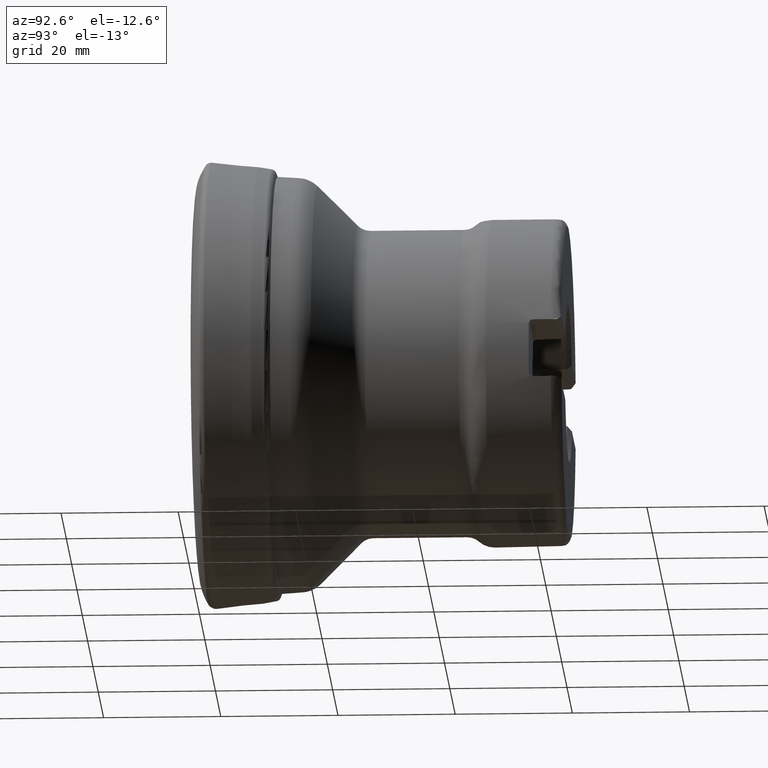
[diagram: clean part render]
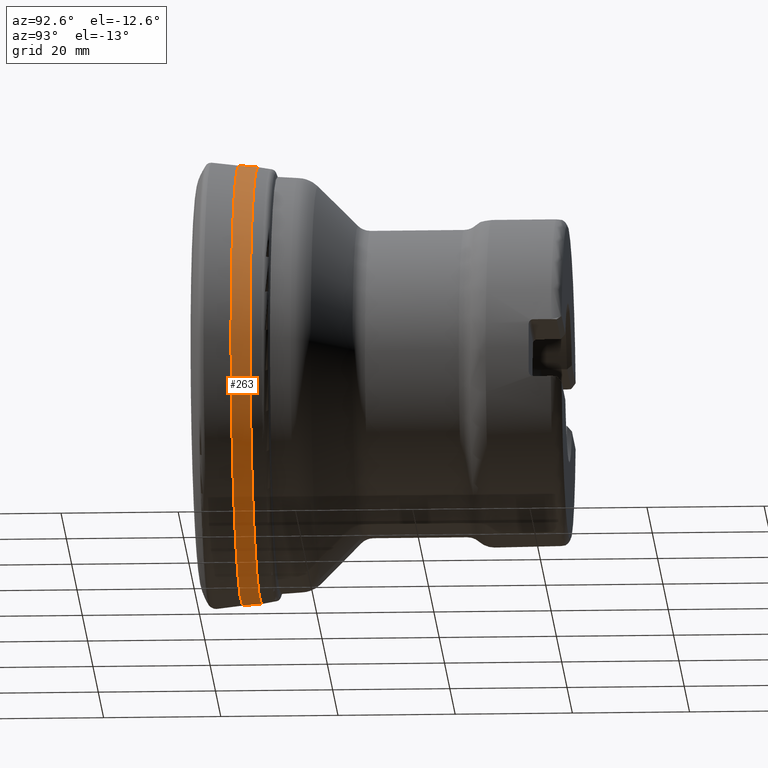
[diagram: same view with one face highlighted and labeled with its STEP entity id]
A machine part, auxiliary view. The second image highlights one B-rep face of the part: STEP entity #263.
In plain terms, the highlighted face is a SurfaceOfRevolution surface.
Its self-contained STEP definition (entity closure, byte-faithful):
#113=SURFACE_OF_REVOLUTION('',#368,#138);
#138=AXIS1_PLACEMENT('',#1938,#1403);
#263=ADVANCED_FACE('',(#455,#456),#113,.F.);
#368=LINE('',#1937,#396);
#396=VECTOR('',#1402,3.27474250085945);
#455=FACE_BOUND('',#569,.T.);
#456=FACE_BOUND('',#570,.T.);
#569=EDGE_LOOP('',(#793));
#570=EDGE_LOOP('',(#794));
#793=ORIENTED_EDGE('',*,*,#1016,.T.);
#794=ORIENTED_EDGE('',*,*,#1015,.F.);
#903=VERTEX_POINT('',#1929);
#904=VERTEX_POINT('',#1936);
#1015=EDGE_CURVE('',#903,#903,#1075,.T.);
#1016=EDGE_CURVE('',#904,#904,#1076,.T.);
#1075=CIRCLE('',#1176,37.2648807517158);
#1076=CIRCLE('',#1177,37.5456700332003);
#1176=AXIS2_PLACEMENT_3D('',#1928,#1397,#1398);
#1177=AXIS2_PLACEMENT_3D('',#1935,#1400,#1401);
#1397=DIRECTION('',(0.,1.,0.));
#1398=DIRECTION('',(0.,0.,1.));
#1400=DIRECTION('',(0.,1.,0.));
#1401=DIRECTION('',(0.,0.,1.));
#1402=DIRECTION('',(0.119754478464403,-0.983141642126485,-0.138171547015138));
#1403=DIRECTION('',(0.,1.,0.));
#1928=CARTESIAN_POINT('',(0.,10.3122474004188,0.));
#1929=CARTESIAN_POINT('',(0.,10.3122474004188,37.2648807517158));
#1935=CARTESIAN_POINT('',(0.,7.09271168058244,0.));
#1936=CARTESIAN_POINT('',(0.,7.09271168058244,37.5456700332003));
#1937=CARTESIAN_POINT('',(36.2570077008698,10.3122474004188,8.60817808939056));
#1938=CARTESIAN_POINT('',(0.,0.,0.));